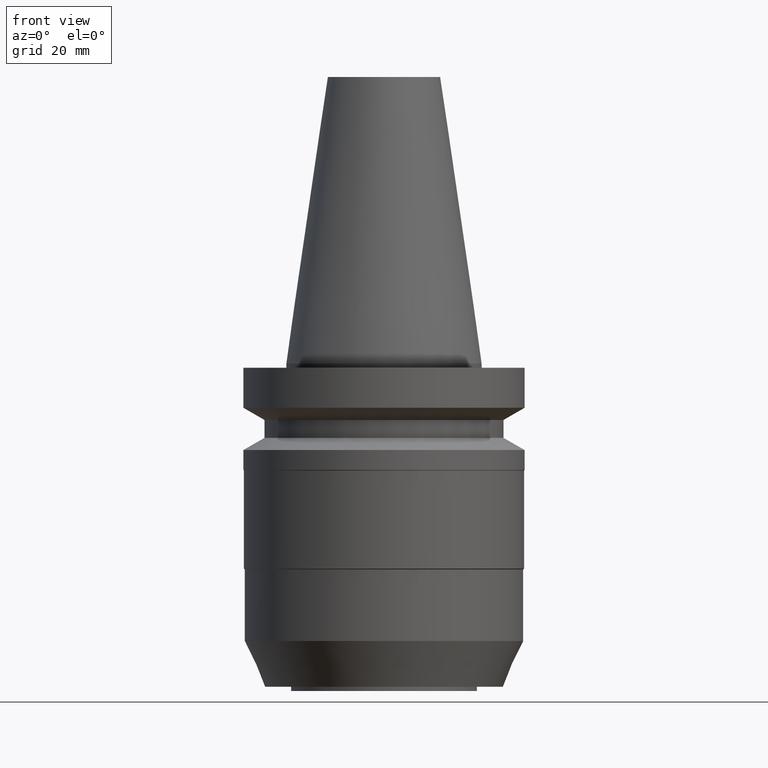
[diagram: clean part render]
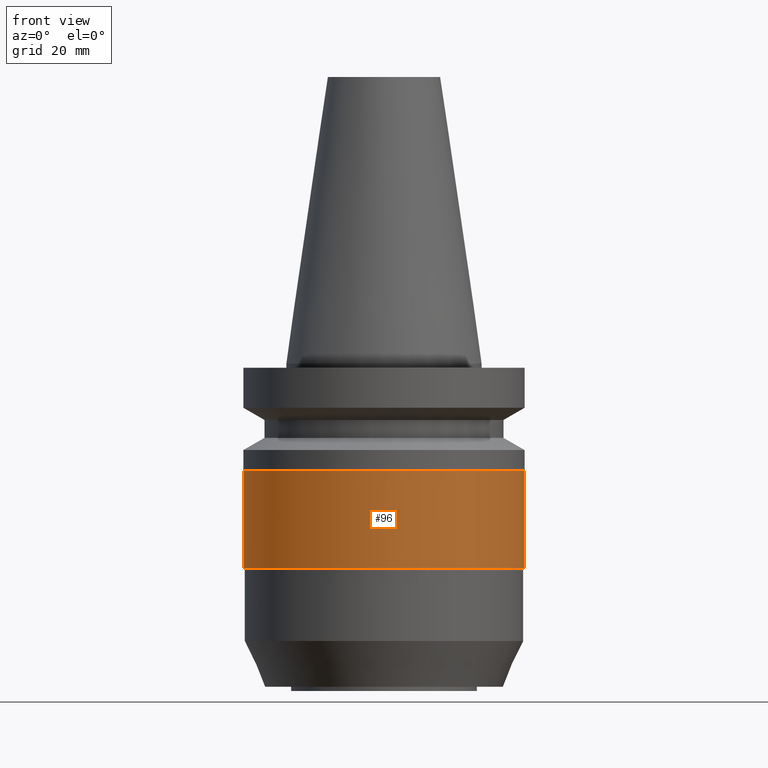
[diagram: same view with one face highlighted and labeled with its STEP entity id]
A machine part, front view. The second image highlights one B-rep face of the part: STEP entity #96.
In plain terms, the highlighted cylindrical surface (bore or boss wall) has radius 49.85 mm, axis along (0, 0, -1).
Its self-contained STEP definition (entity closure, byte-faithful):
#96=ADVANCED_FACE('Unnamed[1]',(#219,#220),#221,.T.);
#108=EDGE_CURVE('Unnamed[1]',#239,#239,#240,.T.);
#139=EDGE_CURVE('Unnamed[1]',#286,#286,#287,.T.);
#219=FACE_BOUND('',#373,.T.);
#220=FACE_BOUND('',#374,.T.);
#221=CYLINDRICAL_SURFACE('',#375,49.8500000000001);
#239=VERTEX_POINT('',#398);
#240=CIRCLE('',#399,49.8500000000005);
#286=VERTEX_POINT('',#458);
#287=CIRCLE('',#459,49.8499999999998);
#373=EDGE_LOOP('',(#532));
#374=EDGE_LOOP('',(#533));
#375=AXIS2_PLACEMENT_3D('',#534,#535,#536);
#398=CARTESIAN_POINT('',(4.45771434889633E-015,49.8500000000005,-72.7999999999994));
#399=AXIS2_PLACEMENT_3D('',#555,#556,#557);
#458=CARTESIAN_POINT('',(2.32682891838008E-015,49.8499999999998,-38.0000000000018));
#459=AXIS2_PLACEMENT_3D('',#607,#608,#609);
#532=ORIENTED_EDGE('',*,*,#108,.F.);
#533=ORIENTED_EDGE('',*,*,#139,.T.);
#534=CARTESIAN_POINT('',(3.39227163363821E-015,6.78454326727641E-015,-55.4000000000006));
#535=DIRECTION('',(6.12323399573677E-017,1.22464679914735E-016,-1.0));
#536=DIRECTION('',(-1.23259516440783E-032,1.0,1.22464679914735E-016));
#555=CARTESIAN_POINT('',(4.45771434889633E-015,8.91542869779266E-015,-72.7999999999994));
#556=DIRECTION('',(6.12323399573677E-017,1.22464679914735E-016,-1.0));
#557=DIRECTION('',(-1.23259516440783E-032,1.0,1.22464679914735E-016));
#607=CARTESIAN_POINT('',(2.32682891838008E-015,4.65365783676016E-015,-38.0000000000018));
#608=DIRECTION('',(6.12323399573677E-017,1.22464679914735E-016,-1.0));
#609=DIRECTION('',(-1.23259516440783E-032,1.0,1.22464679914735E-016));